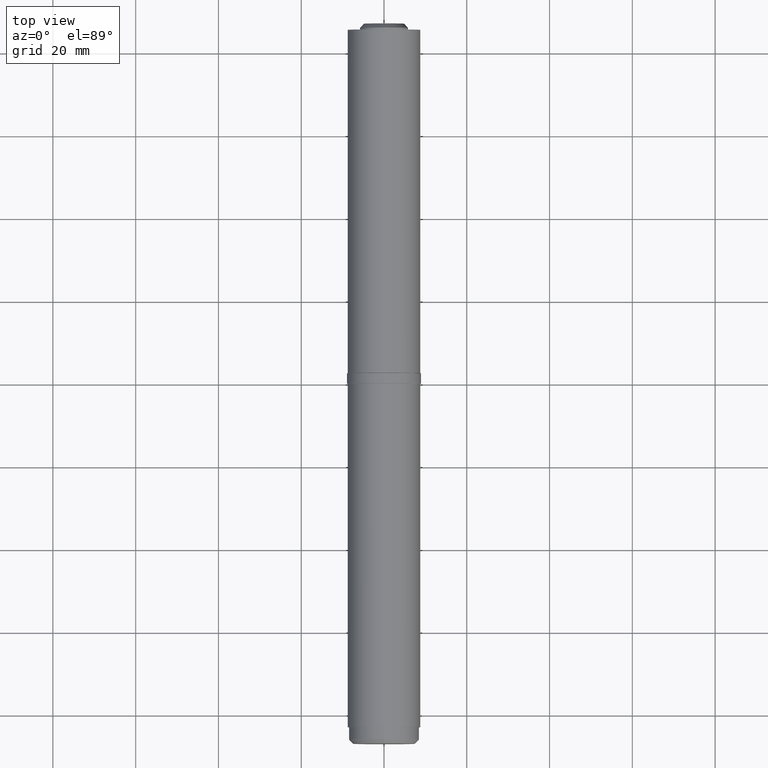
[diagram: clean part render]
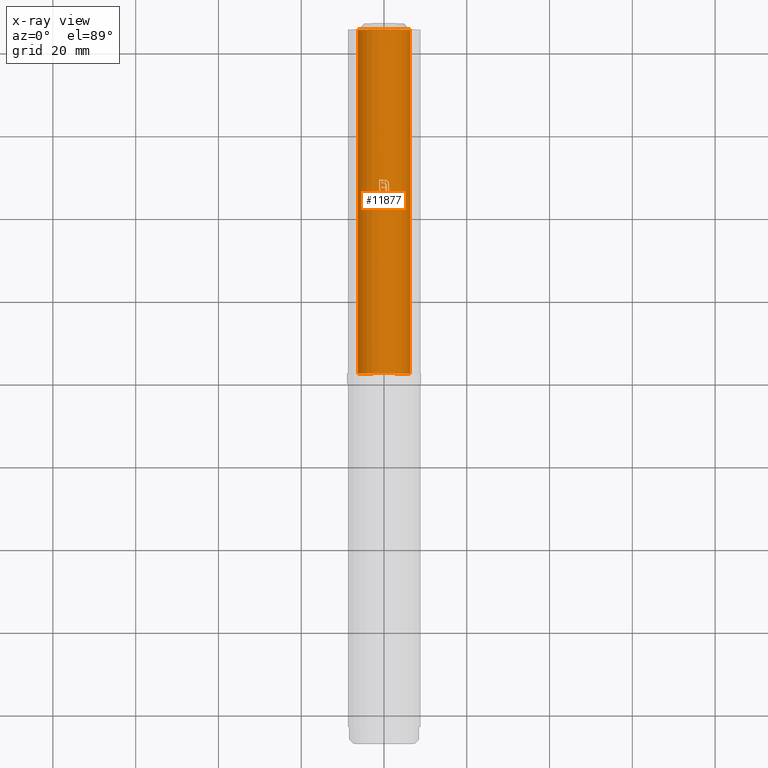
[diagram: x-ray — body ghosted, one internal face saturated and labeled with its STEP entity id]
A machine part, top view, then the same camera in x-ray: the body is ghosted and one INTERNAL B-rep face — a face not visible from any outside direction — is saturated and labeled: STEP entity #11877.
In plain terms, the highlighted cylindrical surface (edge-blend (fillet) strip) has radius 6.3 mm, axis along (-0, -1, -0).
Its self-contained STEP definition (entity closure, byte-faithful):
#1 = CARTESIAN_POINT ( 'NONE',  ( 0.8368516923237012684, 4.578865621437572031, 6.244247076470346158 ) ) ;
#24 = LINE ( 'NONE', #11568, #10273 ) ;
#45 = VERTEX_POINT ( 'NONE', #2609 ) ;
#69 = EDGE_CURVE ( 'NONE', #9911, #2867, #13602, .T. ) ;
#75 = VECTOR ( 'NONE', #6545, 1000.000000000000000 ) ;
#98 = CARTESIAN_POINT ( 'NONE',  ( -0.7303341124247152427, 2.185045213547120557, 6.257638304908035742 ) ) ;
#134 = CARTESIAN_POINT ( 'NONE',  ( -0.4974822962976616636, 2.065223535058157811, 6.280327329436766526 ) ) ;
#145 = CARTESIAN_POINT ( 'NONE',  ( 0.2571824939352628792, 4.513262421854414619, 6.294934901390020876 ) ) ;
#173 = CARTESIAN_POINT ( 'NONE',  ( -0.9332505014942699129, 2.359958641255535117, 6.230571941435542271 ) ) ;
#185 = CARTESIAN_POINT ( 'NONE',  ( 0.4385461099589674228, 4.384072776394799753, 6.284717758932364617 ) ) ;
#187 = CARTESIAN_POINT ( 'NONE',  ( -0.1984051946959321522, 4.288401663094820293, 6.296875048682295528 ) ) ;
#208 = VECTOR ( 'NONE', #9224, 1000.000000000000000 ) ;
#219 = CARTESIAN_POINT ( 'NONE',  ( -1.014492433997512100, 2.465848140047506742, 6.217837761985767209 ) ) ;
#232 = AXIS2_PLACEMENT_3D ( 'NONE', #9633, #8639, #6573 ) ;
#256 = EDGE_CURVE ( 'NONE', #2867, #8195, #8546, .T. ) ;
#311 = DIRECTION ( 'NONE',  ( 0.000000000000000000, 0.000000000000000000, -1.000000000000000000 ) ) ;
#418 = ORIENTED_EDGE ( 'NONE', *, *, #7684, .F. ) ;
#456 = CARTESIAN_POINT ( 'NONE',  ( -2.654166666666665009, 41.50000000000000000, -5.713615257046591012 ) ) ;
#467 = VECTOR ( 'NONE', #5496, 1000.000000000000000 ) ;
#482 = EDGE_CURVE ( 'NONE', #9870, #3764, #1445, .T. ) ;
#490 = VERTEX_POINT ( 'NONE', #12772 ) ;
#511 = EDGE_CURVE ( 'NONE', #9160, #12186, #3265, .T. ) ;
#599 = CARTESIAN_POINT ( 'NONE',  ( 1.223437250338884619, 4.327171407113824309, 6.180080695856883466 ) ) ;
#621 = VERTEX_POINT ( 'NONE', #2401 ) ;
#638 = CARTESIAN_POINT ( 'NONE',  ( 0.5487291460196703774, 4.818314471571064850, 6.276251894084930782 ) ) ;
#696 = DIRECTION ( 'NONE',  ( 1.000000000000000000, 2.133985228384167868E-14, 4.440892098500626162E-15 ) ) ;
#716 = CARTESIAN_POINT ( 'NONE',  ( 1.253355793030608512, 41.50000000000000000, 6.174066670848040062 ) ) ;
#734 = CYLINDRICAL_SURFACE ( 'NONE', #10168, 6.299999999999998934 ) ;
#761 = CARTESIAN_POINT ( 'NONE',  ( 0.2913339246180788877, 4.894875417931648265, 6.293485689323589760 ) ) ;
#800 = ORIENTED_EDGE ( 'NONE', *, *, #3945, .F. ) ;
#810 = CARTESIAN_POINT ( 'NONE',  ( -1.200062488306459896, 41.50000000000000000, 6.184646313586549482 ) ) ;
#829 = CARTESIAN_POINT ( 'NONE',  ( 0.2908658679522872492, 3.980841506915690609, 6.293281897933728608 ) ) ;
#849 = CARTESIAN_POINT ( 'NONE',  ( -1.200062488306459896, 3.066508182491721080, 6.184646313586549482 ) ) ;
#872 = CARTESIAN_POINT ( 'NONE',  ( 0.2794211549483802126, 4.012229624816598061, 6.293810855071728660 ) ) ;
#920 = CARTESIAN_POINT ( 'NONE',  ( 0.8929069625060275239, 4.878808667214500794, 6.236487173950655105 ) ) ;
#939 = CARTESIAN_POINT ( 'NONE',  ( -1.177751238159371772, 2.839664564278693959, 6.188945100264329646 ) ) ;
#957 = ORIENTED_EDGE ( 'NONE', *, *, #256, .F. ) ;
#976 = CIRCLE ( 'NONE', #232, 6.299999999999998934 ) ;
#985 = EDGE_CURVE ( 'NONE', #12394, #4233, #8577, .T. ) ;
#1001 = EDGE_CURVE ( 'NONE', #13691, #2166, #12674, .T. ) ;
#1008 = CARTESIAN_POINT ( 'NONE',  ( 1.092833790849434328, 4.639623803867230833, 6.204491462285821157 ) ) ;
#1019 = CARTESIAN_POINT ( 'NONE',  ( -0.2549089394637054640, 4.609445667457173990, 6.294840858399954442 ) ) ;
#1044 = FACE_BOUND ( 'NONE', #4919, .T. ) ;
#1099 = CARTESIAN_POINT ( 'NONE',  ( 1.180913269329201487, 4.467760409883537065, 6.188363246396319184 ) ) ;
#1141 = DIRECTION ( 'NONE',  ( 0.000000000000000000, 1.000000000000000000, 0.000000000000000000 ) ) ;
#1185 = CARTESIAN_POINT ( 'NONE',  ( -0.5428137551133371819, 2.082098563418559145, 6.276611026656071068 ) ) ;
#1227 = CARTESIAN_POINT ( 'NONE',  ( 0.3251442271220607583, 3.793746262859905016, 6.291604156582833340 ) ) ;
#1253 = CARTESIAN_POINT ( 'NONE',  ( -0.02806842255170774805, 4.270059055448117036, 6.299937472995700283 ) ) ;
#1270 = CARTESIAN_POINT ( 'NONE',  ( 0.2292938646833196925, 5.145495147125455304, 6.295996323931198013 ) ) ;
#1278 = LINE ( 'NONE', #6451, #467 ) ;
#1385 = CARTESIAN_POINT ( 'NONE',  ( -0.4514584251969783746, 2.050494949013295098, 6.283846382901442595 ) ) ;
#1433 = CARTESIAN_POINT ( 'NONE',  ( 1.253355793030608734, 4.080365148268019659, 6.174066670848040062 ) ) ;
#1445 = LINE ( 'NONE', #12693, #7219 ) ;
#1495 = CIRCLE ( 'NONE', #4911, 6.299999999999998934 ) ;
#1559 = AXIS2_PLACEMENT_3D ( 'NONE', #10100, #1645, #8032 ) ;
#1645 = DIRECTION ( 'NONE',  ( 0.000000000000000000, -1.000000000000000000, -0.000000000000000000 ) ) ;
#1684 = B_SPLINE_CURVE_WITH_KNOTS ( 'NONE', 3,
 ( #4714, #8779, #12012, #5667, #5812, #4810, #4765, #7958, #6874, #13241 ),
 .UNSPECIFIED., .F., .F.,
 ( 4, 2, 2, 2, 4 ),
 ( 0.000000000000000000, 0.0001622697139305250371, 0.0003245394278610500742, 0.0004868091417915751114, 0.0006490788557221001485 ),
 .UNSPECIFIED. ) ;
#1734 = ORIENTED_EDGE ( 'NONE', *, *, #9794, .F. ) ;
#1874 = VERTEX_POINT ( 'NONE', #6898 ) ;
#1905 = EDGE_CURVE ( 'NONE', #7854, #10265, #4600, .T. ) ;
#1979 = CARTESIAN_POINT ( 'NONE',  ( 0.6119098723146358942, 4.102196140564658755, 6.270212620650425173 ) ) ;
#2028 = CARTESIAN_POINT ( 'NONE',  ( 1.117975152669210104, 4.598374591142348145, 6.200063165476703553 ) ) ;
#2038 = CARTESIAN_POINT ( 'NONE',  ( 0.000000000000000000, -41.50000000000000000, 0.000000000000000000 ) ) ;
#2070 = CARTESIAN_POINT ( 'NONE',  ( 0.2305917024532696535, 4.099618470448969987, 6.295802973698966909 ) ) ;
#2083 = CARTESIAN_POINT ( 'NONE',  ( 1.195983477467792211, 4.421605657038802484, 6.185452181581019282 ) ) ;
#2100 = EDGE_CURVE ( 'NONE', #7043, #490, #12793, .T. ) ;
#2131 = VECTOR ( 'NONE', #1141, 1000.000000000000000 ) ;
#2132 = CARTESIAN_POINT ( 'NONE',  ( 0.3974763731009119394, 4.421972512505226938, 6.287583595399013348 ) ) ;
#2153 = CARTESIAN_POINT ( 'NONE',  ( 0.3255386204234207437, 41.50000000000000000, 6.291583632648682922 ) ) ;
#2155 = CIRCLE ( 'NONE', #1559, 6.299999999999998934 ) ;
#2166 = VERTEX_POINT ( 'NONE', #13707 ) ;
#2196 = VERTEX_POINT ( 'NONE', #3995 ) ;
#2205 = EDGE_CURVE ( 'NONE', #3449, #8195, #5656, .T. ) ;
#2250 = CARTESIAN_POINT ( 'NONE',  ( -0.2303768625905776024, 2.003451508650416546, 6.295986291376446609 ) ) ;
#2257 = CARTESIAN_POINT ( 'NONE',  ( -0.6928129614139494352, 2.160522002181172851, 6.261789696284666640 ) ) ;
#2269 = CARTESIAN_POINT ( 'NONE',  ( 1.006151909671600064, 41.50000000000000000, 6.219136462135574028 ) ) ;
#2308 = CARTESIAN_POINT ( 'NONE',  ( -0.6279620725327548225, 4.288401663094819405, 6.268625338577857420 ) ) ;
#2316 = DIRECTION ( 'NONE',  ( -0.000000000000000000, -1.000000000000000000, -0.000000000000000000 ) ) ;
#2335 = CARTESIAN_POINT ( 'NONE',  ( 0.3225917151030490149, 3.831938730242481217, 6.291735549121344917 ) ) ;
#2363 = CARTESIAN_POINT ( 'NONE',  ( -0.009487521582416284099, 4.265484519261797836, 6.300020257401423684 ) ) ;
#2389 = AXIS2_PLACEMENT_3D ( 'NONE', #4980, #4945, #696 ) ;
#2400 = CARTESIAN_POINT ( 'NONE',  ( -0.7678331069381402196, 2.209545472855116710, 6.253135118258890124 ) ) ;
#2401 = CARTESIAN_POINT ( 'NONE',  ( 0.1001657293610517391, 1.999999999999998668, 6.299203666072525465 ) ) ;
#2410 = DIRECTION ( 'NONE',  ( 0.000000000000000000, 0.000000000000000000, 1.000000000000000000 ) ) ;
#2447 = CARTESIAN_POINT ( 'NONE',  ( -0.6088029511191902499, 2.112102375065507243, 6.270551265205696723 ) ) ;
#2482 = CARTESIAN_POINT ( 'NONE',  ( 0.3253410152909237407, 3.774597254263027502, 6.291593857117748101 ) ) ;
#2499 = CARTESIAN_POINT ( 'NONE',  ( 0.3216860923710724296, 2.000000000000014211, 6.291781787218546640 ) ) ;
#2590 = CARTESIAN_POINT ( 'NONE',  ( 2.654166666666663676, 41.50000000000000000, -5.713615257046590123 ) ) ;
#2609 = CARTESIAN_POINT ( 'NONE',  ( 0.7634426423736642153, 4.656960180102796443, 6.253571406149090350 ) ) ;
#2655 = CARTESIAN_POINT ( 'NONE',  ( 0.2373111195321266909, 4.898344306543259918, 6.295763349721368307 ) ) ;
#2659 = CARTESIAN_POINT ( 'NONE',  ( -0.01477031869394891846, 4.592505698128289460, 6.300075242150422028 ) ) ;
#2687 = DIRECTION ( 'NONE',  ( 0.000000000000000000, 0.000000000000000000, 1.000000000000000000 ) ) ;
#2714 = CARTESIAN_POINT ( 'NONE',  ( 0.08625200130786163377, 4.572649166926148645, 6.299498706290887817 ) ) ;
#2750 = ORIENTED_EDGE ( 'NONE', *, *, #13392, .F. ) ;
#2803 = CARTESIAN_POINT ( 'NONE',  ( 0.4502168634987799289, 4.859831496824003949, 6.284086750635883512 ) ) ;
#2867 = VERTEX_POINT ( 'NONE', #3795 ) ;
#2875 = ORIENTED_EDGE ( 'NONE', *, *, #1905, .F. ) ;
#2892 = CARTESIAN_POINT ( 'NONE',  ( 0.1829950824865380354, 5.146873330759759391, 6.297341724869767177 ) ) ;
#2933 = DIRECTION ( 'NONE',  ( -1.000000000000000000, 6.236743925535665164E-14, 2.842170943040400743E-14 ) ) ;
#2934 = CARTESIAN_POINT ( 'NONE',  ( -0.1290596897536647469, 2.247203883359007559, 6.298677924491827618 ) ) ;
#2957 = CARTESIAN_POINT ( 'NONE',  ( 0.9569284835570953662, 4.817105488106731670, 6.226983806521410258 ) ) ;
#2977 = DIRECTION ( 'NONE',  ( 0.000000000000000000, 0.000000000000000000, 1.000000000000000000 ) ) ;
#2997 = ORIENTED_EDGE ( 'NONE', *, *, #482, .F. ) ;
#2998 = CARTESIAN_POINT ( 'NONE',  ( 0.8227999935310257307, 4.934265195436810636, 6.246038758336780461 ) ) ;
#3028 = LINE ( 'NONE', #716, #208 ) ;
#3034 = VERTEX_POINT ( 'NONE', #3293 ) ;
#3049 = CARTESIAN_POINT ( 'NONE',  ( 0.000000000000000000, 2.000000000000001776, 0.000000000000000000 ) ) ;
#3065 = CARTESIAN_POINT ( 'NONE',  ( 0.3255386204234207437, 2.247203883359007115, 6.291583632648682922 ) ) ;
#3137 = CARTESIAN_POINT ( 'NONE',  ( 0.7634426423736642153, 4.656960180102796443, 6.253571406149090350 ) ) ;
#3244 = ORIENTED_EDGE ( 'NONE', *, *, #511, .F. ) ;
#3258 = B_SPLINE_CURVE_WITH_KNOTS ( 'NONE', 3,
 ( #9694, #11916, #5589, #12871, #11971, #4394 ),
 .UNSPECIFIED., .F., .F.,
 ( 4, 2, 4 ),
 ( 0.000000000000000000, 0.0001674738635839508375, 0.0003349477271679016750 ),
 .UNSPECIFIED. ) ;
#3265 = B_SPLINE_CURVE_WITH_KNOTS ( 'NONE', 3,
 ( #10737, #1385, #9685, #134, #6626, #1185, #7615, #6478, #2447, #7730, #11815, #6531, #8781 ),
 .UNSPECIFIED., .F., .F.,
 ( 4, 3, 3, 3, 4 ),
 ( 0.000000000000000000, 7.266957333607798662E-05, 0.0001454296376230004937, 0.0002181642136103765324, 0.0002913016183025777519 ),
 .UNSPECIFIED. ) ;
#3273 = CARTESIAN_POINT ( 'NONE',  ( -0.1797280429306665483, 2.000834145307084366, 6.297639731712364686 ) ) ;
#3293 = CARTESIAN_POINT ( 'NONE',  ( 0.1521748580677528551, 4.552941922689394794, 6.298161859826408637 ) ) ;
#3331 = ORIENTED_EDGE ( 'NONE', *, *, #6302, .F. ) ;
#3360 = CARTESIAN_POINT ( 'NONE',  ( 0.3173021718116546541, 3.869900414364881414, 6.292004396991758064 ) ) ;
#3384 = DIRECTION ( 'NONE',  ( 0.000000000000000000, -1.000000000000000000, -0.000000000000000000 ) ) ;
#3385 = VERTEX_POINT ( 'NONE', #5521 ) ;
#3416 = CARTESIAN_POINT ( 'NONE',  ( 0.3026830577771780773, 3.944710668026588429, 6.292735725486518383 ) ) ;
#3424 = CARTESIAN_POINT ( 'NONE',  ( -0.8711843653528019704, 2.295296341372884186, 6.239552950132567943 ) ) ;
#3449 = VERTEX_POINT ( 'NONE', #6239 ) ;
#3459 = EDGE_CURVE ( 'NONE', #6495, #621, #24, .T. ) ;
#3504 = CARTESIAN_POINT ( 'NONE',  ( 0.6304252880966045858, 5.051560356034532795, 6.268520969810569277 ) ) ;
#3516 = DIRECTION ( 'NONE',  ( -0.000000000000000000, 1.000000000000000000, 0.000000000000000000 ) ) ;
#3577 = CARTESIAN_POINT ( 'NONE',  ( 0.3255386204234207437, 3.755468615853321257, 6.291583632648682922 ) ) ;
#3603 = CARTESIAN_POINT ( 'NONE',  ( 0.5461501607375597311, 5.087230611203159114, 6.276425032990744945 ) ) ;
#3618 = EDGE_CURVE ( 'NONE', #6033, #7043, #7142, .T. ) ;
#3628 = CARTESIAN_POINT ( 'NONE',  ( -0.1290596897536647192, 2.000000000000010214, 6.298677924491827618 ) ) ;
#3646 = CARTESIAN_POINT ( 'NONE',  ( -0.6712164146125557673, 2.448091589535224433, 6.264264027397328682 ) ) ;
#3681 = CARTESIAN_POINT ( 'NONE',  ( -0.1172170794413107814, 4.605900524095992488, 6.299279723315263979 ) ) ;
#3687 = ORIENTED_EDGE ( 'NONE', *, *, #10499, .F. ) ;
#3702 = AXIS2_PLACEMENT_3D ( 'NONE', #8650, #3384, #2410 ) ;
#3737 = CARTESIAN_POINT ( 'NONE',  ( -0.6279620725327546005, 41.50000000000000000, 6.268625338577857420 ) ) ;
#3747 = CARTESIAN_POINT ( 'NONE',  ( -0.3951607172296824899, 2.286282281573687403, 6.287790034577153797 ) ) ;
#3764 = VERTEX_POINT ( 'NONE', #12254 ) ;
#3790 = CARTESIAN_POINT ( 'NONE',  ( 1.209693808437328988, 4.375083544272653668, 6.182769677889383253 ) ) ;
#3795 = CARTESIAN_POINT ( 'NONE',  ( -2.654166666666665009, 41.50000000000000000, -5.713615257046591012 ) ) ;
#3802 = CARTESIAN_POINT ( 'NONE',  ( -0.7101493376495161547, 2.485418534595869922, 6.259847275951382350 ) ) ;
#3826 = CARTESIAN_POINT ( 'NONE',  ( -0.7101493376495161547, 2.485418534595869922, 6.259847275951382350 ) ) ;
#3829 = CARTESIAN_POINT ( 'NONE',  ( 1.252505053358663467, 4.130219677296432579, 6.174239373792961949 ) ) ;
#3863 = CARTESIAN_POINT ( 'NONE',  ( 0.5953177617820337719, 4.791791893809728364, 6.271970692116406454 ) ) ;
#3872 = CARTESIAN_POINT ( 'NONE',  ( 0.6473511990947629080, 3.971975500745406951, 6.266658792834441272 ) ) ;
#3907 = ORIENTED_EDGE ( 'NONE', *, *, #3459, .F. ) ;
#3912 = CARTESIAN_POINT ( 'NONE',  ( 0.7634426423736642153, 4.656960180102796443, 6.253571406149090350 ) ) ;
#3922 = EDGE_CURVE ( 'NONE', #8961, #13691, #12217, .T. ) ;
#3926 = CARTESIAN_POINT ( 'NONE',  ( 0.6684136170824090950, 3.703459487146620877, 6.264441175116802540 ) ) ;
#3945 = EDGE_CURVE ( 'NONE', #8517, #9618, #9421, .T. ) ;
#3981 = VECTOR ( 'NONE', #11894, 1000.000000000000000 ) ;
#3995 = CARTESIAN_POINT ( 'NONE',  ( 1.253355793030608512, 1.999999999999998668, 6.174066670848040062 ) ) ;
#4063 = VERTEX_POINT ( 'NONE', #7454 ) ;
#4064 = CARTESIAN_POINT ( 'NONE',  ( 1.014514631908902231, 4.749571735526843419, 6.217777743023847670 ) ) ;
#4099 = DIRECTION ( 'NONE',  ( -0.000000000000000000, -1.000000000000000000, -0.000000000000000000 ) ) ;
#4105 = CIRCLE ( 'NONE', #2389, 6.299999999999998934 ) ;
#4154 = EDGE_CURVE ( 'NONE', #3764, #11567, #1495, .T. ) ;
#4233 = VERTEX_POINT ( 'NONE', #9291 ) ;
#4238 = ORIENTED_EDGE ( 'NONE', *, *, #10234, .F. ) ;
#4250 = CARTESIAN_POINT ( 'NONE',  ( 0.3255386204234207992, 41.50000000000000000, 6.291583632648682922 ) ) ;
#4257 = ORIENTED_EDGE ( 'NONE', *, *, #4154, .F. ) ;
#4261 = CARTESIAN_POINT ( 'NONE',  ( 0.3539858621080627654, 4.456705445255003895, 6.290233879384180327 ) ) ;
#4287 = CARTESIAN_POINT ( 'NONE',  ( 1.006151909671600064, 4.080365148268018771, 6.219136462135574028 ) ) ;
#4304 = CARTESIAN_POINT ( 'NONE',  ( -0.06557413758827135286, 4.278026228021587052, 6.299687250754729462 ) ) ;
#4328 = CARTESIAN_POINT ( 'NONE',  ( -0.3306143962044495455, 2.017977766730397082, 6.291518974066564240 ) ) ;
#4331 = CIRCLE ( 'NONE', #8730, 6.299999999999998934 ) ;
#4354 = CARTESIAN_POINT ( 'NONE',  ( 2.654166666666663676, 41.50000000000000000, -5.713615257046590123 ) ) ;
#4386 = ORIENTED_EDGE ( 'NONE', *, *, #12223, .F. ) ;
#4394 = CARTESIAN_POINT ( 'NONE',  ( 0.6119098723146358942, 4.102196140564658755, 6.270212620650425173 ) ) ;
#4397 = CARTESIAN_POINT ( 'NONE',  ( -0.1603755281032059610, 4.287855584881075544, 6.298073307079711469 ) ) ;
#4474 = VERTEX_POINT ( 'NONE', #3577 ) ;
#4493 = CARTESIAN_POINT ( 'NONE',  ( 0.3676468771693277016, 5.133685127648310420, 6.289432459352789273 ) ) ;
#4502 = CARTESIAN_POINT ( 'NONE',  ( 0.2908658679522872492, 3.980841506915690609, 6.293281897933728608 ) ) ;
#4578 = VECTOR ( 'NONE', #5795, 1000.000000000000000 ) ;
#4600 = B_SPLINE_CURVE_WITH_KNOTS ( 'NONE', 3,
 ( #3826, #3646, #13314, #7844, #12297, #3747, #11093, #6941, #5888, #11049 ),
 .UNSPECIFIED., .F., .F.,
 ( 4, 2, 2, 2, 4 ),
 ( 0.000000000000000000, 0.0001619236995039753744, 0.0003238473990079507488, 0.0004857710985119259605, 0.0006476947980159011723 ),
 .UNSPECIFIED. ) ;
#4691 = CARTESIAN_POINT ( 'NONE',  ( 1.249807301272153115, 4.179934879789243496, 6.174790415903140151 ) ) ;
#4714 = CARTESIAN_POINT ( 'NONE',  ( -0.9528586049474515596, 3.066508182491721080, 6.227524426204801067 ) ) ;
#4734 = CARTESIAN_POINT ( 'NONE',  ( 0.01922127478986362242, 4.587327887227610645, 6.300059833119494357 ) ) ;
#4740 = ORIENTED_EDGE ( 'NONE', *, *, #11668, .F. ) ;
#4765 = CARTESIAN_POINT ( 'NONE',  ( -0.8442003820073824549, 2.653646644096741003, 6.243257650813013981 ) ) ;
#4789 = CARTESIAN_POINT ( 'NONE',  ( -2.654166666666665009, -41.50000000000000000, -5.713615257046591012 ) ) ;
#4797 = CARTESIAN_POINT ( 'NONE',  ( 0.08600512376304647599, 4.228852764752083715, 6.299471189230373191 ) ) ;
#4810 = CARTESIAN_POINT ( 'NONE',  ( -0.8711291221555463871, 2.701205873382251266, 6.239517320949228285 ) ) ;
#4895 = DIRECTION ( 'NONE',  ( 1.000000000000000000, 3.689729298109399617E-14, -1.776356839400250465E-14 ) ) ;
#4907 = CARTESIAN_POINT ( 'NONE',  ( 0.3255386204234207992, 3.460750219848669484, 6.291583632648682922 ) ) ;
#4911 = AXIS2_PLACEMENT_3D ( 'NONE', #5210, #13596, #6207 ) ;
#4919 = EDGE_LOOP ( 'NONE', ( #6268, #8777, #7511, #5529, #5415, #3244, #8130, #4386, #3907, #9707, #2875, #5950, #2750, #9648, #5952, #7612, #11347, #4257, #2997, #8317, #9183, #10116, #4238, #4740, #7722, #6987, #7619, #10017, #12661, #9491, #3331, #13335, #13434, #7030, #1734, #418, #800, #3687, #12816, #6684, #12554, #9592 ) ) ;
#4945 = DIRECTION ( 'NONE',  ( -2.132914047695753628E-14, 1.000000000000000000, -0.000000000000000000 ) ) ;
#4959 = CIRCLE ( 'NONE', #12583, 6.299999999999998934 ) ;
#4965 = CARTESIAN_POINT ( 'NONE',  ( -1.186878177025278536, 2.884433460819533668, 6.187192281519203085 ) ) ;
#4980 = CARTESIAN_POINT ( 'NONE',  ( 0.000000000000000000, 5.146873330759755838, 0.000000000000000000 ) ) ;
#4995 = DIRECTION ( 'NONE',  ( -6.234671831726042317E-14, -1.000000000000000000, -0.000000000000000000 ) ) ;
#5032 = CARTESIAN_POINT ( 'NONE',  ( 0.000000000000000000, 2.247203883359007115, 0.000000000000000000 ) ) ;
#5072 = CARTESIAN_POINT ( 'NONE',  ( 0.8587770639602875233, 4.907859580484347894, 6.241299445235824805 ) ) ;
#5111 = CARTESIAN_POINT ( 'NONE',  ( 1.042421899245525641, 4.714290298144066860, 6.213224294473622678 ) ) ;
#5140 = CIRCLE ( 'NONE', #3702, 6.299999999999998934 ) ;
#5156 = CARTESIAN_POINT ( 'NONE',  ( 0.2656425079070067197, 4.042743419293915785, 6.294421472611281487 ) ) ;
#5204 = EDGE_CURVE ( 'NONE', #4233, #6966, #13086, .T. ) ;
#5210 = CARTESIAN_POINT ( 'NONE',  ( 0.000000000000000000, 2.247203883359007115, 0.000000000000000000 ) ) ;
#5269 = CARTESIAN_POINT ( 'NONE',  ( 0.000000000000000000, 41.50000000000000000, 0.000000000000000000 ) ) ;
#5415 = ORIENTED_EDGE ( 'NONE', *, *, #10472, .F. ) ;
#5486 = VECTOR ( 'NONE', #11872, 1000.000000000000000 ) ;
#5496 = DIRECTION ( 'NONE',  ( -0.000000000000000000, -1.000000000000000000, -0.000000000000000000 ) ) ;
#5519 = CARTESIAN_POINT ( 'NONE',  ( 0.3255386204234207437, 3.755468615853321257, 6.291583632648682922 ) ) ;
#5521 = CARTESIAN_POINT ( 'NONE',  ( -0.6279620725327547115, 3.144200831547416808, 6.268625338577857420 ) ) ;
#5529 = ORIENTED_EDGE ( 'NONE', *, *, #3618, .F. ) ;
#5532 = CARTESIAN_POINT ( 'NONE',  ( -0.8384278689073956237, 2.264849318060020877, 6.244061594503394375 ) ) ;
#5533 = EDGE_CURVE ( 'NONE', #9911, #3449, #13166, .T. ) ;
#5548 = CARTESIAN_POINT ( 'NONE',  ( -1.061371478421925474, 2.541922279363643344, 6.209950932559165082 ) ) ;
#5589 = CARTESIAN_POINT ( 'NONE',  ( 0.5132754962468406568, 4.301092066059232444, 6.279123366265349837 ) ) ;
#5641 = CARTESIAN_POINT ( 'NONE',  ( 0.1829950824865380354, 4.899669447400731848, 6.297341724869767177 ) ) ;
#5648 = CARTESIAN_POINT ( 'NONE',  ( 0.02696769636643687323, 4.253728910623685522, 6.299942280954062390 ) ) ;
#5656 = CIRCLE ( 'NONE', #11951, 6.299999999999998934 ) ;
#5664 = FACE_OUTER_BOUND ( 'NONE', #7692, .T. ) ;
#5667 = CARTESIAN_POINT ( 'NONE',  ( -0.9274729854216640090, 2.851612325209540888, 6.231364361395088203 ) ) ;
#5782 = CARTESIAN_POINT ( 'NONE',  ( -0.2549089394637054640, 4.609445667457173990, 6.294840858399954442 ) ) ;
#5795 = DIRECTION ( 'NONE',  ( -0.000000000000000000, -1.000000000000000000, -0.000000000000000000 ) ) ;
#5812 = CARTESIAN_POINT ( 'NONE',  ( -0.9127694492002965676, 2.799933766143134051, 6.233561925456385211 ) ) ;
#5834 = B_SPLINE_CURVE_WITH_KNOTS ( 'NONE', 3,
 ( #6227, #7302, #2363, #1253, #8658, #4304, #8748, #10752, #4397, #187 ),
 .UNSPECIFIED., .F., .F.,
 ( 4, 3, 3, 4 ),
 ( 0.000000000000000000, 5.740773500736219863E-05, 0.0001149014141920566188, 0.0002293392819398010760 ),
 .UNSPECIFIED. ) ;
#5869 = VERTEX_POINT ( 'NONE', #3065 ) ;
#5888 = CARTESIAN_POINT ( 'NONE',  ( -0.1830968102715104240, 2.248687298291702774, 6.297570705787707723 ) ) ;
#5950 = ORIENTED_EDGE ( 'NONE', *, *, #10681, .F. ) ;
#5952 = ORIENTED_EDGE ( 'NONE', *, *, #12069, .F. ) ;
#5953 = EDGE_CURVE ( 'NONE', #3034, #13217, #12395, .T. ) ;
#5960 = CARTESIAN_POINT ( 'NONE',  ( 0.000000000000000000, 3.144200831547407038, 0.000000000000000000 ) ) ;
#5974 = CARTESIAN_POINT ( 'NONE',  ( 0.1868476105388863773, 4.149710653210286537, 6.297228594424367998 ) ) ;
#5994 = EDGE_CURVE ( 'NONE', #11567, #11944, #11319, .T. ) ;
#6033 = VERTEX_POINT ( 'NONE', #5548 ) ;
#6058 = EDGE_CURVE ( 'NONE', #8523, #1874, #10163, .T. ) ;
#6161 = EDGE_CURVE ( 'NONE', #7804, #2196, #3028, .T. ) ;
#6169 = ORIENTED_EDGE ( 'NONE', *, *, #5533, .T. ) ;
#6207 = DIRECTION ( 'NONE',  ( 0.000000000000000000, 0.000000000000000000, -1.000000000000000000 ) ) ;
#6227 = CARTESIAN_POINT ( 'NONE',  ( 0.02696769636643687323, 4.253728910623685522, 6.299942280954062390 ) ) ;
#6239 = CARTESIAN_POINT ( 'NONE',  ( 2.654166666666663676, -41.50000000000000000, -5.713615257046590123 ) ) ;
#6244 = CARTESIAN_POINT ( 'NONE',  ( 1.067655423929805281, 4.676916048975393814, 6.208926277022118967 ) ) ;
#6255 = CARTESIAN_POINT ( 'NONE',  ( 0.9810499566988242215, 4.294194063963682417, 6.223154062873698322 ) ) ;
#6268 = ORIENTED_EDGE ( 'NONE', *, *, #3922, .F. ) ;
#6295 = CARTESIAN_POINT ( 'NONE',  ( 1.004769854340610724, 4.134289706974283440, 6.219360055494395745 ) ) ;
#6299 = DIRECTION ( 'NONE',  ( -0.000000000000000000, -1.000000000000000000, -0.000000000000000000 ) ) ;
#6302 = EDGE_CURVE ( 'NONE', #7769, #4474, #10454, .T. ) ;
#6434 = CIRCLE ( 'NONE', #7047, 6.299999999999998934 ) ;
#6451 = CARTESIAN_POINT ( 'NONE',  ( -0.9528586049475263886, 41.50000000000000000, 6.227524426204801067 ) ) ;
#6478 = CARTESIAN_POINT ( 'NONE',  ( -0.5870231807705318383, 2.101583441274049502, 6.272630723281397813 ) ) ;
#6495 = VERTEX_POINT ( 'NONE', #11963 ) ;
#6521 = AXIS2_PLACEMENT_3D ( 'NONE', #11323, #9866, #2687 ) ;
#6531 = CARTESIAN_POINT ( 'NONE',  ( -0.6720886186537351481, 2.147890532017444620, 6.264082665863247357 ) ) ;
#6545 = DIRECTION ( 'NONE',  ( 0.000000000000000000, 1.000000000000000000, 0.000000000000000000 ) ) ;
#6560 = CARTESIAN_POINT ( 'NONE',  ( 0.3216860923712109299, 41.50000000000000000, 6.291781787218540423 ) ) ;
#6573 = DIRECTION ( 'NONE',  ( -1.000000000000000000, 2.498827864204686695E-14, -7.105427357601001859E-15 ) ) ;
#6598 = EDGE_CURVE ( 'NONE', #10649, #7769, #9456, .T. ) ;
#6626 = CARTESIAN_POINT ( 'NONE',  ( -0.5203301896640707414, 2.073122869533643442, 6.278517483888715667 ) ) ;
#6684 = ORIENTED_EDGE ( 'NONE', *, *, #13093, .F. ) ;
#6699 = B_SPLINE_CURVE_WITH_KNOTS ( 'NONE', 3,
 ( #1008, #2028, #7466, #1099, #2083, #8453 ),
 .UNSPECIFIED., .F., .F.,
 ( 4, 2, 4 ),
 ( 0.000000000000000000, 0.0001453195488629365818, 0.0002906390977258731636 ),
 .UNSPECIFIED. ) ;
#6706 = CARTESIAN_POINT ( 'NONE',  ( 0.5024112448134102626, 5.101252835021188758, 6.280095235003997800 ) ) ;
#6874 = CARTESIAN_POINT ( 'NONE',  ( -0.7475258554620279883, 2.524474750287941216, 6.255607091135662934 ) ) ;
#6895 = B_SPLINE_CURVE_WITH_KNOTS ( 'NONE', 3,
 ( #4287, #6295, #10656, #6255, #12632, #9460, #11713, #1, #9513, #3137 ),
 .UNSPECIFIED., .F., .F.,
 ( 4, 2, 2, 2, 4 ),
 ( 0.000000000000000000, 0.0001614533778845529547, 0.0003229067557691059093, 0.0004843601336536588640, 0.0006458135115382118187 ),
 .UNSPECIFIED. ) ;
#6898 = CARTESIAN_POINT ( 'NONE',  ( -0.6279620725327548225, 4.609445667457169549, 6.268625338577857420 ) ) ;
#6899 = CARTESIAN_POINT ( 'NONE',  ( 0.6669542880713063004, 3.770825145230832565, 6.264596884996675996 ) ) ;
#6941 = CARTESIAN_POINT ( 'NONE',  ( -0.2369328800321575945, 2.251615298142007227, 6.295766699373798403 ) ) ;
#6950 = CARTESIAN_POINT ( 'NONE',  ( 0.1401866212281069890, 4.194103702081036111, 6.298498381081450326 ) ) ;
#6966 = VERTEX_POINT ( 'NONE', #5648 ) ;
#6987 = ORIENTED_EDGE ( 'NONE', *, *, #8191, .F. ) ;
#7016 = VERTEX_POINT ( 'NONE', #8028 ) ;
#7030 = ORIENTED_EDGE ( 'NONE', *, *, #7058, .F. ) ;
#7043 = VERTEX_POINT ( 'NONE', #8999 ) ;
#7047 = AXIS2_PLACEMENT_3D ( 'NONE', #9826, #3516, #311 ) ;
#7051 = ORIENTED_EDGE ( 'NONE', *, *, #69, .F. ) ;
#7058 = EDGE_CURVE ( 'NONE', #13636, #3385, #4331, .T. ) ;
#7077 = CARTESIAN_POINT ( 'NONE',  ( 0.3977123312121315091, 4.874729841237429362, 6.287659539045989732 ) ) ;
#7106 = LINE ( 'NONE', #2153, #3981 ) ;
#7140 = CARTESIAN_POINT ( 'NONE',  ( 0.4385461099589674228, 4.384072776394799753, 6.284717758932364617 ) ) ;
#7142 = B_SPLINE_CURVE_WITH_KNOTS ( 'NONE', 3,
 ( #8251, #13612, #13569, #10319, #11373, #939, #4965, #9391, #13534, #849 ),
 .UNSPECIFIED., .F., .F.,
 ( 4, 2, 2, 2, 4 ),
 ( 0.000000000000000000, 0.0001378191124642574872, 0.0002756382249285149744, 0.0004134573373927724615, 0.0005512764498570299487 ),
 .UNSPECIFIED. ) ;
#7150 = CARTESIAN_POINT ( 'NONE',  ( 0.1868476105388863773, 4.149710653210286537, 6.297228594424367998 ) ) ;
#7155 = VECTOR ( 'NONE', #11374, 1000.000000000000000 ) ;
#7219 = VECTOR ( 'NONE', #6299, 1000.000000000000000 ) ;
#7302 = CARTESIAN_POINT ( 'NONE',  ( 0.008756593366735390335, 4.259605369248836482, 6.300020235874010943 ) ) ;
#7325 = CARTESIAN_POINT ( 'NONE',  ( 0.9250374287677275431, 4.847841706698514663, 6.231717721092540074 ) ) ;
#7401 = B_SPLINE_CURVE_WITH_KNOTS ( 'NONE', 3,
 ( #5782, #9997, #3681, #2659, #4734, #2714, #10094, #12136 ),
 .UNSPECIFIED., .F., .F.,
 ( 4, 2, 2, 4 ),
 ( 1.084202172485504434E-19, 0.0002066057419546741365, 0.0003099086129320111505, 0.0004132114839093481646 ),
 .UNSPECIFIED. ) ;
#7454 = CARTESIAN_POINT ( 'NONE',  ( 1.209693808437328988, 4.375083544272653668, 6.182769677889383253 ) ) ;
#7466 = CARTESIAN_POINT ( 'NONE',  ( 1.141804793611843838, 4.556404665907637153, 6.195698316760720026 ) ) ;
#7483 = CARTESIAN_POINT ( 'NONE',  ( 0.1521748580677528551, 4.552941922689394794, 6.298161859826408637 ) ) ;
#7511 = ORIENTED_EDGE ( 'NONE', *, *, #2100, .F. ) ;
#7594 = CARTESIAN_POINT ( 'NONE',  ( 0.1829950824865380354, 5.146873330759759391, 6.297341724869767177 ) ) ;
#7612 = ORIENTED_EDGE ( 'NONE', *, *, #12327, .F. ) ;
#7615 = CARTESIAN_POINT ( 'NONE',  ( -0.5649223638632326905, 2.091842719436031395, 6.274620524207591643 ) ) ;
#7619 = ORIENTED_EDGE ( 'NONE', *, *, #11912, .F. ) ;
#7684 = EDGE_CURVE ( 'NONE', #9618, #5869, #6434, .T. ) ;
#7692 = EDGE_LOOP ( 'NONE', ( #8335, #957, #7051, #6169 ) ) ;
#7698 = B_SPLINE_CURVE_WITH_KNOTS ( 'NONE', 3,
 ( #2257, #98, #2400, #5532, #3424, #173, #10788, #219, #10735, #11814 ),
 .UNSPECIFIED., .F., .F.,
 ( 4, 2, 2, 2, 4 ),
 ( 0.000000000000000000, 0.0001349929171846220180, 0.0002699858343692440360, 0.0004049787515538660811, 0.0005399716687384880720 ),
 .UNSPECIFIED. ) ;
#7722 = ORIENTED_EDGE ( 'NONE', *, *, #6058, .F. ) ;
#7730 = CARTESIAN_POINT ( 'NONE',  ( -0.6300081560926467095, 2.123638588196706589, 6.268420034048191702 ) ) ;
#7754 = CARTESIAN_POINT ( 'NONE',  ( 0.2755740900263376481, 5.144125827066517331, 6.294138845621297662 ) ) ;
#7769 = VERTEX_POINT ( 'NONE', #4907 ) ;
#7804 = VERTEX_POINT ( 'NONE', #1433 ) ;
#7844 = CARTESIAN_POINT ( 'NONE',  ( -0.5410337104281703891, 2.352191622913806235, 6.276886849313918049 ) ) ;
#7854 = VERTEX_POINT ( 'NONE', #3802 ) ;
#7958 = CARTESIAN_POINT ( 'NONE',  ( -0.7833829998653223381, 2.564689434165193571, 6.251180005002147766 ) ) ;
#7994 = CARTESIAN_POINT ( 'NONE',  ( 0.05683867383176573890, 4.242011287279431109, 6.299814414472987067 ) ) ;
#8028 = CARTESIAN_POINT ( 'NONE',  ( -0.9528586049474515596, 3.066508182491721080, 6.227524426204801067 ) ) ;
#8032 = DIRECTION ( 'NONE',  ( 0.000000000000000000, 0.000000000000000000, 1.000000000000000000 ) ) ;
#8079 = CARTESIAN_POINT ( 'NONE',  ( 0.000000000000000000, 4.609445667457183760, 0.000000000000000000 ) ) ;
#8130 = ORIENTED_EDGE ( 'NONE', *, *, #9769, .F. ) ;
#8191 = EDGE_CURVE ( 'NONE', #8982, #8523, #2155, .T. ) ;
#8195 = VERTEX_POINT ( 'NONE', #4789 ) ;
#8229 = EDGE_CURVE ( 'NONE', #10864, #9870, #8477, .T. ) ;
#8233 = CARTESIAN_POINT ( 'NONE',  ( 0.7114335136669640569, 5.008182320875206095, 6.259701458986000944 ) ) ;
#8236 = CARTESIAN_POINT ( 'NONE',  ( 0.3216860923710724296, 2.247203883359007115, 6.291781787218540423 ) ) ;
#8251 = CARTESIAN_POINT ( 'NONE',  ( -1.061371478421925474, 2.541922279363643344, 6.209950932559165082 ) ) ;
#8301 = AXIS2_PLACEMENT_3D ( 'NONE', #5032, #12447, #11437 ) ;
#8317 = ORIENTED_EDGE ( 'NONE', *, *, #8229, .F. ) ;
#8335 = ORIENTED_EDGE ( 'NONE', *, *, #2205, .T. ) ;
#8403 = CARTESIAN_POINT ( 'NONE',  ( 0.7491480953784869223, 4.984410162488007501, 6.255415085656648166 ) ) ;
#8420 = CARTESIAN_POINT ( 'NONE',  ( -0.4282727018193738244, 2.043661984593278191, 6.285426198188657665 ) ) ;
#8453 = CARTESIAN_POINT ( 'NONE',  ( 1.209693808437328988, 4.375083544272653668, 6.182769677889383253 ) ) ;
#8464 = VERTEX_POINT ( 'NONE', #1019 ) ;
#8477 = B_SPLINE_CURVE_WITH_KNOTS ( 'NONE', 3,
 ( #11196, #13263, #3872, #9057, #6899, #3926 ),
 .UNSPECIFIED., .F., .F.,
 ( 4, 2, 4 ),
 ( 0.000000000000000000, 0.0002023202551190804303, 0.0004046405102381621073 ),
 .UNSPECIFIED. ) ;
#8498 = CARTESIAN_POINT ( 'NONE',  ( 0.2908658679522872492, 3.980841506915690609, 6.293281897933728608 ) ) ;
#8517 = VERTEX_POINT ( 'NONE', #2499 ) ;
#8523 = VERTEX_POINT ( 'NONE', #2308 ) ;
#8546 = LINE ( 'NONE', #456, #4578 ) ;
#8555 = EDGE_CURVE ( 'NONE', #10184, #13671, #5140, .T. ) ;
#8561 = EDGE_CURVE ( 'NONE', #13217, #10864, #3258, .T. ) ;
#8577 = B_SPLINE_CURVE_WITH_KNOTS ( 'NONE', 3,
 ( #829, #872, #5156, #2070, #10420, #7150 ),
 .UNSPECIFIED., .F., .F.,
 ( 4, 2, 4 ),
 ( 0.000000000000000000, 0.0001001993741247123645, 0.0002003987482494247832 ),
 .UNSPECIFIED. ) ;
#8581 = CARTESIAN_POINT ( 'NONE',  ( -0.1290596897536647192, 2.000000000000010214, 6.298677924491827618 ) ) ;
#8626 = CARTESIAN_POINT ( 'NONE',  ( 0.3201256995050164034, 3.850962035272500472, 6.291862008110132187 ) ) ;
#8639 = DIRECTION ( 'NONE',  ( -2.501565858408595493E-14, -1.000000000000000000, -0.000000000000000000 ) ) ;
#8650 = CARTESIAN_POINT ( 'NONE',  ( 0.000000000000000000, 4.899669447400730071, 0.000000000000000000 ) ) ;
#8658 = CARTESIAN_POINT ( 'NONE',  ( -0.04667091491692821476, 4.274638907341255845, 6.299854592392764019 ) ) ;
#8729 = CARTESIAN_POINT ( 'NONE',  ( 0.6684136170824090950, 3.703459487146620877, 6.264441175116802540 ) ) ;
#8730 = AXIS2_PLACEMENT_3D ( 'NONE', #5960, #10145, #10317 ) ;
#8748 = CARTESIAN_POINT ( 'NONE',  ( -0.08453093410372103378, 4.280784813270407163, 6.299432872979876308 ) ) ;
#8777 = ORIENTED_EDGE ( 'NONE', *, *, #12561, .F. ) ;
#8779 = CARTESIAN_POINT ( 'NONE',  ( -0.9514649470113926144, 3.012309514877101968, 6.227737666469455924 ) ) ;
#8781 = CARTESIAN_POINT ( 'NONE',  ( -0.6928129614139494352, 2.160522002181172851, 6.261789696284666640 ) ) ;
#8961 = VERTEX_POINT ( 'NONE', #2892 ) ;
#8978 = DIRECTION ( 'NONE',  ( 1.000000000000000000, -3.070185199546254046E-14, 0.000000000000000000 ) ) ;
#8982 = VERTEX_POINT ( 'NONE', #12510 ) ;
#8999 = CARTESIAN_POINT ( 'NONE',  ( -1.200062488306459896, 3.066508182491721080, 6.184646313586549482 ) ) ;
#9050 = CARTESIAN_POINT ( 'NONE',  ( 0.7114335136669640569, 5.008182320875206095, 6.259701458986000944 ) ) ;
#9057 = CARTESIAN_POINT ( 'NONE',  ( 0.6646920977760198967, 3.838143505918323317, 6.264843207609646747 ) ) ;
#9157 = CARTESIAN_POINT ( 'NONE',  ( 0.000000000000000000, 3.460750219848679698, 0.000000000000000000 ) ) ;
#9160 = VERTEX_POINT ( 'NONE', #8420 ) ;
#9183 = ORIENTED_EDGE ( 'NONE', *, *, #8561, .F. ) ;
#9224 = DIRECTION ( 'NONE',  ( -0.000000000000000000, -1.000000000000000000, -0.000000000000000000 ) ) ;
#9291 = CARTESIAN_POINT ( 'NONE',  ( 0.1868476105388863773, 4.149710653210286537, 6.297228594424367998 ) ) ;
#9301 = VERTEX_POINT ( 'NONE', #3628 ) ;
#9328 = CARTESIAN_POINT ( 'NONE',  ( 0.7868961372387177633, 4.960617074376686197, 6.250768426830370927 ) ) ;
#9329 = CIRCLE ( 'NONE', #9881, 6.299999999999998934 ) ;
#9334 = VECTOR ( 'NONE', #2316, 1000.000000000000000 ) ;
#9349 = CARTESIAN_POINT ( 'NONE',  ( -0.9528586049474515596, 4.899669447400730071, 6.227524426204812613 ) ) ;
#9391 = CARTESIAN_POINT ( 'NONE',  ( -1.197295127820169114, 2.974976202058484009, 6.185184921446385431 ) ) ;
#9421 = LINE ( 'NONE', #6560, #13275 ) ;
#9440 = B_SPLINE_CURVE_WITH_KNOTS ( 'NONE', 3,
 ( #8581, #3273, #2250, #4328, #12805, #10524 ),
 .UNSPECIFIED., .F., .F.,
 ( 4, 2, 4 ),
 ( 3.794707603699265519E-19, 0.0001520344733134104665, 0.0003040689466268205535 ),
 .UNSPECIFIED. ) ;
#9456 = CIRCLE ( 'NONE', #9585, 6.299999999999998934 ) ;
#9460 = CARTESIAN_POINT ( 'NONE',  ( 0.9240643737526357260, 4.443420100455011124, 6.231897627789139804 ) ) ;
#9480 = DIRECTION ( 'NONE',  ( -0.000000000000000000, -1.000000000000000000, -0.000000000000000000 ) ) ;
#9491 = ORIENTED_EDGE ( 'NONE', *, *, #9814, .F. ) ;
#9513 = CARTESIAN_POINT ( 'NONE',  ( 0.8010435159787893111, 4.618605784349218979, 6.248981051544290288 ) ) ;
#9528 = CARTESIAN_POINT ( 'NONE',  ( 0.2051083033173914105, 4.534416160237795701, 6.296882893090211653 ) ) ;
#9529 = EDGE_CURVE ( 'NONE', #10265, #6495, #11244, .T. ) ;
#9585 = AXIS2_PLACEMENT_3D ( 'NONE', #9157, #11178, #8978 ) ;
#9592 = ORIENTED_EDGE ( 'NONE', *, *, #1001, .F. ) ;
#9618 = VERTEX_POINT ( 'NONE', #8236 ) ;
#9633 = CARTESIAN_POINT ( 'NONE',  ( 0.000000000000000000, 2.000000000000022649, 0.000000000000000000 ) ) ;
#9648 = ORIENTED_EDGE ( 'NONE', *, *, #8555, .F. ) ;
#9684 = CARTESIAN_POINT ( 'NONE',  ( -0.6279620725325443242, 41.50000000000000000, 6.268625338577878736 ) ) ;
#9685 = CARTESIAN_POINT ( 'NONE',  ( -0.4746526486375715059, 2.057330508776369804, 6.282135729691379566 ) ) ;
#9694 = CARTESIAN_POINT ( 'NONE',  ( 0.4385461099589674228, 4.384072776394799753, 6.284717758932364617 ) ) ;
#9707 = ORIENTED_EDGE ( 'NONE', *, *, #9529, .F. ) ;
#9753 = CARTESIAN_POINT ( 'NONE',  ( 0.7114335136669640569, 5.008182320875206095, 6.259701458986000944 ) ) ;
#9769 = EDGE_CURVE ( 'NONE', #9301, #9160, #9440, .T. ) ;
#9794 = EDGE_CURVE ( 'NONE', #5869, #13636, #7106, .T. ) ;
#9814 = EDGE_CURVE ( 'NONE', #4474, #12394, #12565, .T. ) ;
#9826 = CARTESIAN_POINT ( 'NONE',  ( 0.000000000000000000, 2.247203883359007115, 0.000000000000000000 ) ) ;
#9863 = CARTESIAN_POINT ( 'NONE',  ( 0.3238685902757389434, 3.812833232199238864, 6.291669820980184014 ) ) ;
#9866 = DIRECTION ( 'NONE',  ( -0.000000000000000000, -1.000000000000000000, -0.000000000000000000 ) ) ;
#9870 = VERTEX_POINT ( 'NONE', #8729 ) ;
#9881 = AXIS2_PLACEMENT_3D ( 'NONE', #8079, #11201, #4895 ) ;
#9911 = VERTEX_POINT ( 'NONE', #2590 ) ;
#9997 = CARTESIAN_POINT ( 'NONE',  ( -0.1860917901797414786, 4.608669324059254890, 6.297627601851537804 ) ) ;
#10007 = CARTESIAN_POINT ( 'NONE',  ( 1.235270129904555869, 4.278673740204885334, 6.177715004498675277 ) ) ;
#10017 = ORIENTED_EDGE ( 'NONE', *, *, #5204, .F. ) ;
#10044 = CARTESIAN_POINT ( 'NONE',  ( 0.1829950824865380354, 4.899669447400731848, 6.297341724869767177 ) ) ;
#10094 = CARTESIAN_POINT ( 'NONE',  ( 0.1192178590966097018, 4.562810970060546367, 6.298958159882268149 ) ) ;
#10100 = CARTESIAN_POINT ( 'NONE',  ( 0.000000000000000000, 4.288401663094819405, 0.000000000000000000 ) ) ;
#10116 = ORIENTED_EDGE ( 'NONE', *, *, #5953, .F. ) ;
#10145 = DIRECTION ( 'NONE',  ( -1.546769729245012206E-14, -1.000000000000000000, -0.000000000000000000 ) ) ;
#10163 = LINE ( 'NONE', #3737, #5486 ) ;
#10168 = AXIS2_PLACEMENT_3D ( 'NONE', #5269, #9480, #12702 ) ;
#10184 = VERTEX_POINT ( 'NONE', #5641 ) ;
#10234 = EDGE_CURVE ( 'NONE', #8464, #3034, #7401, .T. ) ;
#10265 = VERTEX_POINT ( 'NONE', #2934 ) ;
#10273 = VECTOR ( 'NONE', #4099, 1000.000000000000000 ) ;
#10317 = DIRECTION ( 'NONE',  ( -1.000000000000000000, 1.548860246407863612E-14, -2.042810365310288034E-14 ) ) ;
#10319 = CARTESIAN_POINT ( 'NONE',  ( -1.140666774865727096, 2.707120983407328207, 6.195902715381201631 ) ) ;
#10381 = CARTESIAN_POINT ( 'NONE',  ( 0.9870210882323843249, 4.784330127595590731, 6.222263686956814865 ) ) ;
#10420 = CARTESIAN_POINT ( 'NONE',  ( 0.2098497219779914824, 4.125546729792487710, 6.296546089494583498 ) ) ;
#10454 = LINE ( 'NONE', #4250, #13471 ) ;
#10472 = EDGE_CURVE ( 'NONE', #12186, #6033, #7698, .T. ) ;
#10499 = EDGE_CURVE ( 'NONE', #2196, #8517, #976, .T. ) ;
#10524 = CARTESIAN_POINT ( 'NONE',  ( -0.4282727018193738244, 2.043661984593278191, 6.285426198188657665 ) ) ;
#10543 = EDGE_CURVE ( 'NONE', #3385, #10649, #12739, .T. ) ;
#10649 = VERTEX_POINT ( 'NONE', #11070 ) ;
#10656 = CARTESIAN_POINT ( 'NONE',  ( 1.001337501433630539, 4.188018293066897435, 6.219921922019829630 ) ) ;
#10681 = EDGE_CURVE ( 'NONE', #7016, #7854, #1684, .T. ) ;
#10735 = CARTESIAN_POINT ( 'NONE',  ( -1.037936813764328559, 2.503888857461606943, 6.213956259645329716 ) ) ;
#10737 = CARTESIAN_POINT ( 'NONE',  ( -0.4282727018193738244, 2.043661984593278191, 6.285426198188657665 ) ) ;
#10752 = CARTESIAN_POINT ( 'NONE',  ( -0.1221834621417003941, 4.286263993697421171, 6.298927620613418377 ) ) ;
#10788 = CARTESIAN_POINT ( 'NONE',  ( -0.9621828748463610026, 2.393858224494655129, 6.226146918308849365 ) ) ;
#10864 = VERTEX_POINT ( 'NONE', #1979 ) ;
#11049 = CARTESIAN_POINT ( 'NONE',  ( -0.1290596897536647469, 2.247203883359007559, 6.298677924491827618 ) ) ;
#11070 = CARTESIAN_POINT ( 'NONE',  ( -0.6279620725327547115, 3.460750219848685028, 6.268625338577878736 ) ) ;
#11093 = CARTESIAN_POINT ( 'NONE',  ( -0.3429434315237762654, 2.270808680081164876, 6.290882714322294511 ) ) ;
#11145 = B_SPLINE_CURVE_WITH_KNOTS ( 'NONE', 3,
 ( #3912, #13425, #11278, #3863, #638, #2803, #7077, #761, #2655, #10044 ),
 .UNSPECIFIED., .F., .F.,
 ( 4, 2, 2, 2, 4 ),
 ( 0.000000000000000000, 0.0001621704085027978327, 0.0003243408170055956654, 0.0004865112255083934981, 0.0006486816340111913309 ),
 .UNSPECIFIED. ) ;
#11178 = DIRECTION ( 'NONE',  ( 3.070103553501481957E-14, 1.000000000000000000, 0.000000000000000000 ) ) ;
#11196 = CARTESIAN_POINT ( 'NONE',  ( 0.6119098723146358942, 4.102196140564658755, 6.270212620650425173 ) ) ;
#11201 = DIRECTION ( 'NONE',  ( -3.684124264201765474E-14, 1.000000000000000000, -0.000000000000000000 ) ) ;
#11244 = CIRCLE ( 'NONE', #8301, 6.299999999999998934 ) ;
#11278 = CARTESIAN_POINT ( 'NONE',  ( 0.6847326682289627264, 4.730704673689531958, 6.262839673288818076 ) ) ;
#11319 = LINE ( 'NONE', #2269, #75 ) ;
#11323 = CARTESIAN_POINT ( 'NONE',  ( 0.000000000000000000, 41.50000000000000000, 0.000000000000000000 ) ) ;
#11347 = ORIENTED_EDGE ( 'NONE', *, *, #5994, .F. ) ;
#11373 = CARTESIAN_POINT ( 'NONE',  ( -1.154542991181838341, 2.750782208076831825, 6.193316552105558870 ) ) ;
#11374 = DIRECTION ( 'NONE',  ( 0.000000000000000000, 1.000000000000000000, 0.000000000000000000 ) ) ;
#11437 = DIRECTION ( 'NONE',  ( 1.000000000000000000, 2.980695496420466689E-14, -5.684341886080801487E-14 ) ) ;
#11447 = CARTESIAN_POINT ( 'NONE',  ( -0.6928129614139494352, 2.160522002181172851, 6.261789696284666640 ) ) ;
#11567 = VERTEX_POINT ( 'NONE', #11840 ) ;
#11568 = CARTESIAN_POINT ( 'NONE',  ( 0.1001657293610517668, 41.50000000000000000, 6.299203666072525465 ) ) ;
#11668 = EDGE_CURVE ( 'NONE', #1874, #8464, #9329, .T. ) ;
#11713 = CARTESIAN_POINT ( 'NONE',  ( 0.8976612323772514834, 4.490835207900699899, 6.235795588282258883 ) ) ;
#11814 = CARTESIAN_POINT ( 'NONE',  ( -1.061371478421925474, 2.541922279363643344, 6.209950932559165082 ) ) ;
#11815 = CARTESIAN_POINT ( 'NONE',  ( -0.6513397751328543483, 2.135243574047559267, 6.266276097632796471 ) ) ;
#11840 = CARTESIAN_POINT ( 'NONE',  ( 1.006151909671600286, 2.247203883359007115, 6.219136462135574028 ) ) ;
#11872 = DIRECTION ( 'NONE',  ( 0.000000000000000000, 1.000000000000000000, 0.000000000000000000 ) ) ;
#11877 = ADVANCED_FACE ( 'NONE', ( #5664, #1044 ), #734, .F. ) ;
#11894 = DIRECTION ( 'NONE',  ( 0.000000000000000000, 1.000000000000000000, 0.000000000000000000 ) ) ;
#11912 = EDGE_CURVE ( 'NONE', #6966, #8982, #5834, .T. ) ;
#11916 = CARTESIAN_POINT ( 'NONE',  ( 0.4773731902195140209, 4.344015540297366584, 6.282008414509517635 ) ) ;
#11944 = VERTEX_POINT ( 'NONE', #13069 ) ;
#11951 = AXIS2_PLACEMENT_3D ( 'NONE', #2038, #12512, #2977 ) ;
#11963 = CARTESIAN_POINT ( 'NONE',  ( 0.1001657293610517391, 2.247203883359010224, 6.299203666072525465 ) ) ;
#11971 = CARTESIAN_POINT ( 'NONE',  ( 0.5927211510033136843, 4.154457773082899763, 6.272085247420500664 ) ) ;
#11994 = CARTESIAN_POINT ( 'NONE',  ( 0.4129105096176423073, 5.124570237495850833, 6.286614202468778778 ) ) ;
#12012 = CARTESIAN_POINT ( 'NONE',  ( -0.9480206450585204614, 2.958307555274691136, 6.228271413457719952 ) ) ;
#12069 = EDGE_CURVE ( 'NONE', #45, #10184, #11145, .T. ) ;
#12136 = CARTESIAN_POINT ( 'NONE',  ( 0.1521748580677528551, 4.552941922689394794, 6.298161859826408637 ) ) ;
#12186 = VERTEX_POINT ( 'NONE', #11447 ) ;
#12217 = B_SPLINE_CURVE_WITH_KNOTS ( 'NONE', 3,
 ( #7594, #1270, #7754, #4493, #11994, #6706, #3603, #3504, #12935, #9753 ),
 .UNSPECIFIED., .F., .F.,
 ( 4, 2, 2, 2, 4 ),
 ( 1.084202172485504434E-18, 0.0001389553409580415993, 0.0002779106819160821144, 0.0004168660228741226294, 0.0005558213638321631445 ),
 .UNSPECIFIED. ) ;
#12223 = EDGE_CURVE ( 'NONE', #621, #9301, #4959, .T. ) ;
#12252 = EDGE_CURVE ( 'NONE', #2166, #4063, #6699, .T. ) ;
#12254 = CARTESIAN_POINT ( 'NONE',  ( 0.6684136170824090950, 2.247203883359007115, 6.264441175116802540 ) ) ;
#12297 = CARTESIAN_POINT ( 'NONE',  ( -0.4940198625831817014, 2.326719020288143369, 6.280796118864434341 ) ) ;
#12327 = EDGE_CURVE ( 'NONE', #11944, #45, #6895, .T. ) ;
#12394 = VERTEX_POINT ( 'NONE', #8498 ) ;
#12395 = B_SPLINE_CURVE_WITH_KNOTS ( 'NONE', 3,
 ( #7483, #9528, #145, #4261, #2132, #185 ),
 .UNSPECIFIED., .F., .F.,
 ( 4, 2, 4 ),
 ( 0.000000000000000000, 0.0001682387002804946411, 0.0003364774005609892822 ),
 .UNSPECIFIED. ) ;
#12447 = DIRECTION ( 'NONE',  ( -2.979806390163224291E-14, 1.000000000000000000, -0.000000000000000000 ) ) ;
#12510 = CARTESIAN_POINT ( 'NONE',  ( -0.1984051946959321522, 4.288401663094820293, 6.296875048682295528 ) ) ;
#12512 = DIRECTION ( 'NONE',  ( -0.000000000000000000, -1.000000000000000000, -0.000000000000000000 ) ) ;
#12533 = CARTESIAN_POINT ( 'NONE',  ( 1.092833790849434328, 4.639623803867230833, 6.204491462285821157 ) ) ;
#12554 = ORIENTED_EDGE ( 'NONE', *, *, #12252, .F. ) ;
#12561 = EDGE_CURVE ( 'NONE', #490, #8961, #4105, .T. ) ;
#12565 = B_SPLINE_CURVE_WITH_KNOTS ( 'NONE', 3,
 ( #5519, #2482, #1227, #9863, #2335, #8626, #3360, #12944, #3416, #4502 ),
 .UNSPECIFIED., .F., .F.,
 ( 4, 3, 3, 4 ),
 ( 0.000000000000000000, 5.738898533374662208E-05, 0.0001148587892191543476, 0.0002293223354928811814 ),
 .UNSPECIFIED. ) ;
#12583 = AXIS2_PLACEMENT_3D ( 'NONE', #3049, #4995, #2933 ) ;
#12632 = CARTESIAN_POINT ( 'NONE',  ( 0.9656838409061598849, 4.345307078182414351, 6.225584127573529969 ) ) ;
#12638 = DIRECTION ( 'NONE',  ( 0.000000000000000000, 1.000000000000000000, 0.000000000000000000 ) ) ;
#12661 = ORIENTED_EDGE ( 'NONE', *, *, #985, .F. ) ;
#12674 = B_SPLINE_CURVE_WITH_KNOTS ( 'NONE', 3,
 ( #8233, #8403, #9328, #2998, #5072, #920, #7325, #2957, #10381, #4064, #5111, #6244, #12533 ),
 .UNSPECIFIED., .F., .F.,
 ( 4, 3, 3, 3, 4 ),
 ( 0.000000000000000000, 0.0001343610942922765657, 0.0002691605639143063687, 0.0004029563454058114787, 0.0005386115294725757384 ),
 .UNSPECIFIED. ) ;
#12693 = CARTESIAN_POINT ( 'NONE',  ( 0.6684136170824090950, 41.50000000000000000, 6.264441175116802540 ) ) ;
#12702 = DIRECTION ( 'NONE',  ( 0.000000000000000000, 0.000000000000000000, -1.000000000000000000 ) ) ;
#12739 = LINE ( 'NONE', #9684, #2131 ) ;
#12772 = CARTESIAN_POINT ( 'NONE',  ( -1.200062488306459896, 5.146873330759740739, 6.184646313586549482 ) ) ;
#12793 = LINE ( 'NONE', #810, #7155 ) ;
#12805 = CARTESIAN_POINT ( 'NONE',  ( -0.3796748394881560018, 2.029849413514779322, 6.288737530968165679 ) ) ;
#12816 = ORIENTED_EDGE ( 'NONE', *, *, #6161, .F. ) ;
#12871 = CARTESIAN_POINT ( 'NONE',  ( 0.5710940976359500931, 4.205593169257178410, 6.274128904913596649 ) ) ;
#12935 = CARTESIAN_POINT ( 'NONE',  ( 0.6709446877382123642, 5.029865031363921268, 6.264303133344351515 ) ) ;
#12944 = CARTESIAN_POINT ( 'NONE',  ( 0.3116961515468744115, 3.907501935760822942, 6.292287105377353917 ) ) ;
#12993 = DIRECTION ( 'NONE',  ( 0.000000000000000000, 1.000000000000000000, 0.000000000000000000 ) ) ;
#13069 = CARTESIAN_POINT ( 'NONE',  ( 1.006151909671600064, 4.080365148268018771, 6.219136462135574028 ) ) ;
#13086 = B_SPLINE_CURVE_WITH_KNOTS ( 'NONE', 3,
 ( #5974, #13324, #6950, #4797, #7994, #13230 ),
 .UNSPECIFIED., .F., .F.,
 ( 4, 2, 4 ),
 ( 0.000000000000000000, 9.647970607038738790E-05, 0.0001929594121407747758 ),
 .UNSPECIFIED. ) ;
#13093 = EDGE_CURVE ( 'NONE', #4063, #7804, #13121, .T. ) ;
#13121 = B_SPLINE_CURVE_WITH_KNOTS ( 'NONE', 3,
 ( #3790, #599, #10007, #4691, #3829, #13176 ),
 .UNSPECIFIED., .F., .F.,
 ( 4, 2, 4 ),
 ( 0.000000000000000000, 0.0001497261209315695367, 0.0002994522418631390733 ),
 .UNSPECIFIED. ) ;
#13166 = LINE ( 'NONE', #4354, #9334 ) ;
#13176 = CARTESIAN_POINT ( 'NONE',  ( 1.253355793030608734, 4.080365148268019659, 6.174066670848040062 ) ) ;
#13217 = VERTEX_POINT ( 'NONE', #7140 ) ;
#13230 = CARTESIAN_POINT ( 'NONE',  ( 0.02696769636643687323, 4.253728910623685522, 6.299942280954062390 ) ) ;
#13241 = CARTESIAN_POINT ( 'NONE',  ( -0.7101493376495161547, 2.485418534595869922, 6.259847275951382350 ) ) ;
#13263 = CARTESIAN_POINT ( 'NONE',  ( 0.6310700526043928615, 4.037545683199940783, 6.268342779197840109 ) ) ;
#13275 = VECTOR ( 'NONE', #12993, 1000.000000000000000 ) ;
#13314 = CARTESIAN_POINT ( 'NONE',  ( -0.6306657378543741865, 2.412697220017972377, 6.268515511826247000 ) ) ;
#13324 = CARTESIAN_POINT ( 'NONE',  ( 0.1643322224939130494, 4.172685593803977966, 6.297896657587942926 ) ) ;
#13335 = ORIENTED_EDGE ( 'NONE', *, *, #6598, .F. ) ;
#13392 = EDGE_CURVE ( 'NONE', #13671, #7016, #1278, .T. ) ;
#13425 = CARTESIAN_POINT ( 'NONE',  ( 0.7249313102892589455, 4.694822441652268807, 6.258272910492501673 ) ) ;
#13431 = CARTESIAN_POINT ( 'NONE',  ( 0.3255386204234207437, 3.144200831547409702, 6.291583632648682922 ) ) ;
#13434 = ORIENTED_EDGE ( 'NONE', *, *, #10543, .F. ) ;
#13471 = VECTOR ( 'NONE', #12638, 1000.000000000000000 ) ;
#13534 = CARTESIAN_POINT ( 'NONE',  ( -1.198681095115369244, 3.020741876941069215, 6.184914357718125366 ) ) ;
#13569 = CARTESIAN_POINT ( 'NONE',  ( -1.104854367697678308, 2.622558774048932673, 6.202388892671121923 ) ) ;
#13596 = DIRECTION ( 'NONE',  ( -0.000000000000000000, 1.000000000000000000, 0.000000000000000000 ) ) ;
#13602 = CIRCLE ( 'NONE', #6521, 6.299999999999998934 ) ;
#13612 = CARTESIAN_POINT ( 'NONE',  ( -1.083108390054372316, 2.582248629060584832, 6.206235776306529672 ) ) ;
#13636 = VERTEX_POINT ( 'NONE', #13431 ) ;
#13671 = VERTEX_POINT ( 'NONE', #9349 ) ;
#13691 = VERTEX_POINT ( 'NONE', #9050 ) ;
#13707 = CARTESIAN_POINT ( 'NONE',  ( 1.092833790849434328, 4.639623803867230833, 6.204491462285821157 ) ) ;